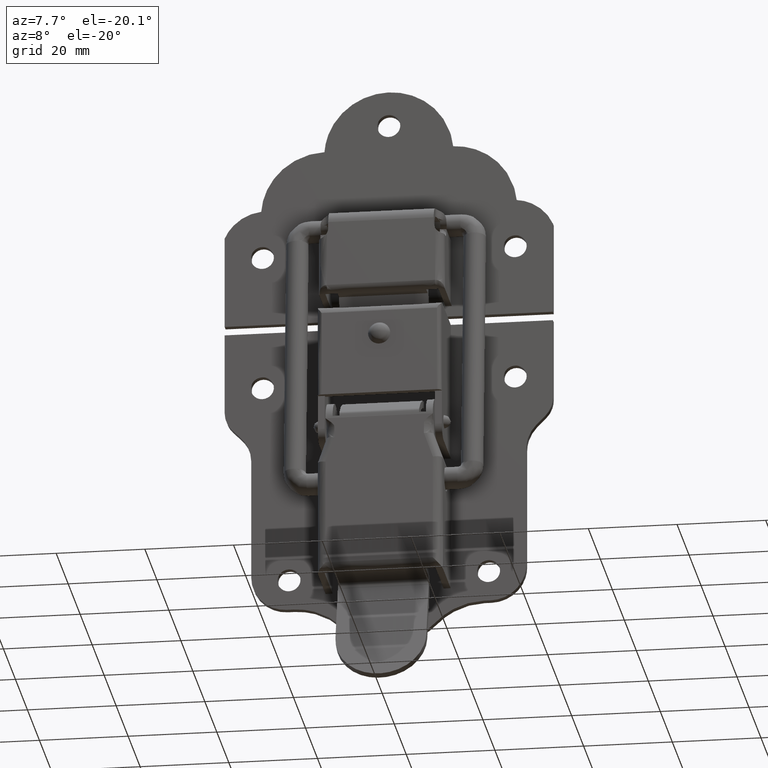
[diagram: clean part render]
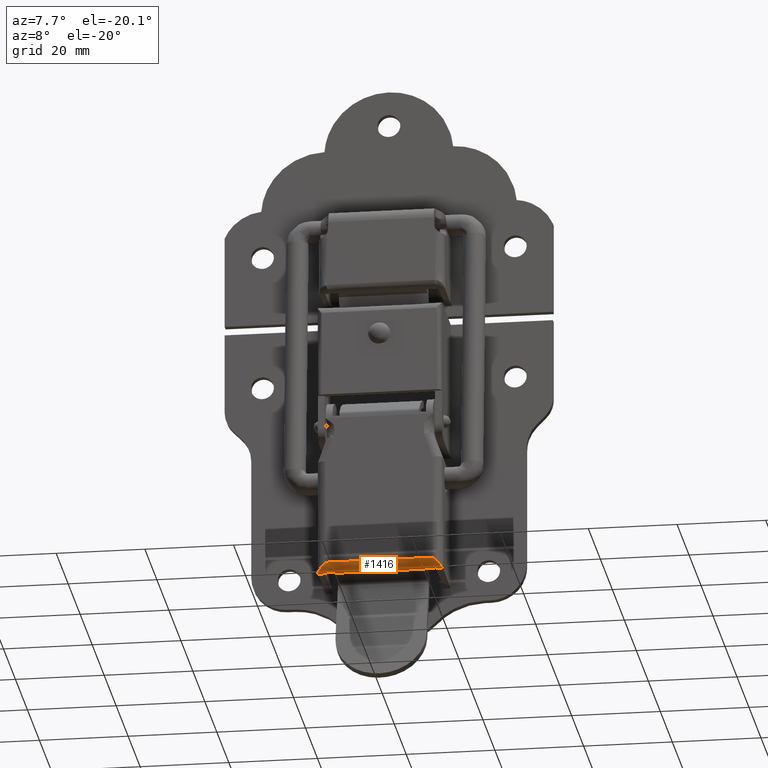
[diagram: same view with one face highlighted and labeled with its STEP entity id]
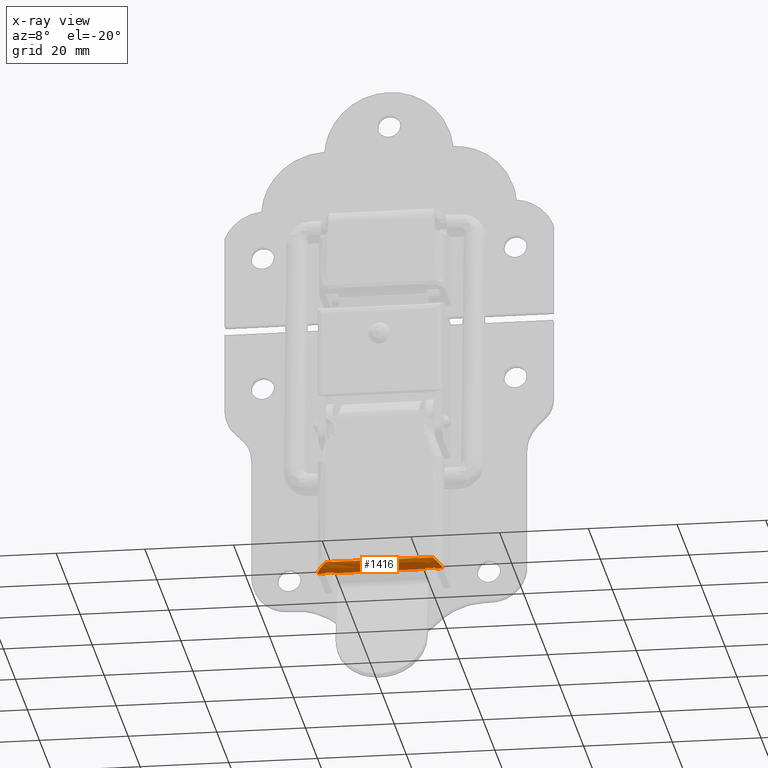
[diagram: x-ray of the same camera — body ghosted, the highlighted face saturated]
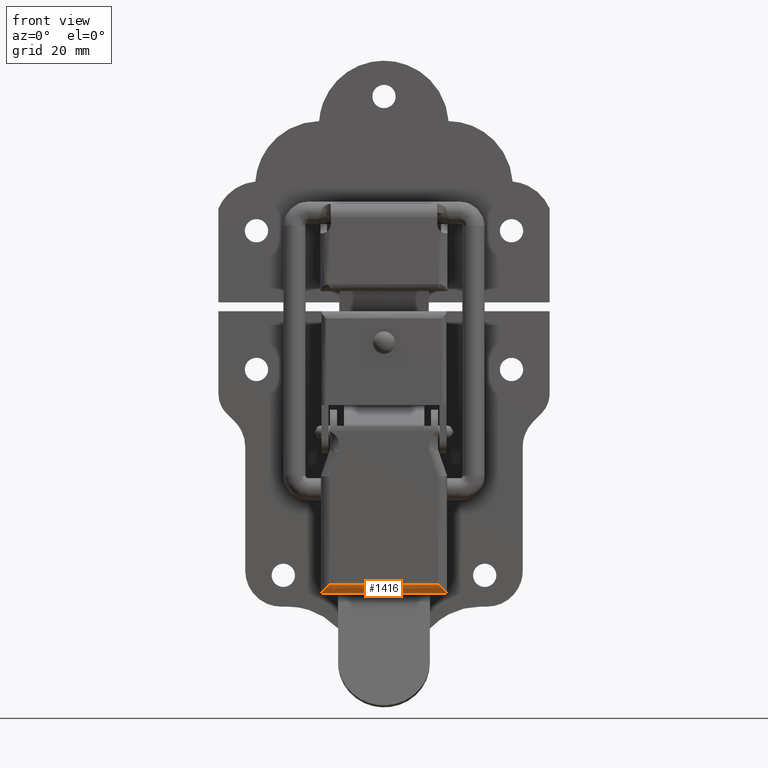
[diagram: same view with one face highlighted and labeled with its STEP entity id]
A machine part, auxiliary view. The second image highlights one B-rep face of the part: STEP entity #1416.
The next image is the same camera in x-ray: the body ghosted, the highlighted face saturated — about 0% of this face is hidden behind the body in this view.
A second angle (front view) of the same face is appended — the face is thin or edge-on in the first view.
In plain terms, the highlighted face is a freeform B-spline surface patch.
Its self-contained STEP definition (entity closure, byte-faithful):
#1266=CARTESIAN_POINT('',(14.804692500000000,-5.099314649951114,-33.947646103384251));
#1267=CARTESIAN_POINT('',(-14.822617312500000,-5.099314649951114,-33.947646103384251));
#1268=CARTESIAN_POINT('',(14.804692500000000,-5.156984525741295,-36.149969807661961));
#1269=CARTESIAN_POINT('',(-14.822617312499998,-5.156984525741295,-36.149969807661961));
#1270=CARTESIAN_POINT('',(14.804692500000009,-2.959359662507070,-35.995048945632639));
#1271=CARTESIAN_POINT('',(-14.822617312500002,-2.959359662507070,-35.995048945632639));
#1279=(BOUNDED_SURFACE()B_SPLINE_SURFACE(1,2,((#1266,#1268,#1270),(#1267,#1269,#1271)),.UNSPECIFIED.,.F.,.F.,.U.)B_SPLINE_SURFACE_WITH_KNOTS((2,2),(3,3),(0.0,29.627309812500009),(0.0,3.542284911563189),.UNSPECIFIED.)GEOMETRIC_REPRESENTATION_ITEM()RATIONAL_B_SPLINE_SURFACE(((1.0,0.670944202448334,0.996392689567979),(1.0,0.670944202448334,0.996392689567979)))REPRESENTATION_ITEM('')SURFACE());
#1280=CARTESIAN_POINT('',(12.099700000000000,-5.100000000000001,-34.0));
#1281=VERTEX_POINT('',#1280);
#1282=CARTESIAN_POINT('',(14.099700000000000,-3.100000000000000,-36.0));
#1283=VERTEX_POINT('',#1282);
#1284=CARTESIAN_POINT('',(12.099700000000000,-5.100000000000001,-34.0));
#1285=CARTESIAN_POINT('',(14.099699999999999,-5.100000000000001,-36.000000000000007));
#1286=CARTESIAN_POINT('',(14.099700000000000,-3.100000000000001,-36.000000000000007));
#1294=(BOUNDED_CURVE()B_SPLINE_CURVE(2,(#1284,#1285,#1286),.UNSPECIFIED.,.F.,.U.)CURVE()GEOMETRIC_REPRESENTATION_ITEM()QUASI_UNIFORM_CURVE()RATIONAL_B_SPLINE_CURVE((1.0,0.707106781186548,1.0))REPRESENTATION_ITEM(''));
#1295=EDGE_CURVE('',#1281,#1283,#1294,.T.);
#1296=ORIENTED_EDGE('',*,*,#1295,.F.);
#1297=CARTESIAN_POINT('',(-12.100000000000000,-5.100000000000001,-34.0));
#1298=VERTEX_POINT('',#1297);
#1299=CARTESIAN_POINT('',(-12.100000000000000,-5.100000000000001,-34.0));
#1300=CARTESIAN_POINT('',(12.099700000000000,-5.100000000000001,-34.0));
#1301=QUASI_UNIFORM_CURVE('',1,(#1299,#1300),.UNSPECIFIED.,.F.,.U.);
#1302=EDGE_CURVE('',#1298,#1281,#1301,.T.);
#1303=ORIENTED_EDGE('',*,*,#1302,.F.);
#1304=CARTESIAN_POINT('',(-14.100000000000000,-3.100000000000000,-36.0));
#1305=VERTEX_POINT('',#1304);
#1306=CARTESIAN_POINT('',(-14.100000000000000,-3.100000000000000,-36.0));
#1307=CARTESIAN_POINT('',(-14.100000039036814,-3.928427058106171,-36.000000039036820));
#1308=CARTESIAN_POINT('',(-13.514213595693100,-4.514213529053086,-35.414213595693113));
#1309=CARTESIAN_POINT('',(-12.928427152349384,-5.100000000000001,-34.828427152349384));
#1310=CARTESIAN_POINT('',(-12.100000000000000,-5.100000000000001,-34.0));
#1318=(BOUNDED_CURVE()B_SPLINE_CURVE(2,(#1306,#1307,#1308,#1309,#1310),.UNSPECIFIED.,.F.,.U.)B_SPLINE_CURVE_WITH_KNOTS((3,2,3),(0.0,0.500000000000000,1.0),.UNSPECIFIED.)CURVE()GEOMETRIC_REPRESENTATION_ITEM()RATIONAL_B_SPLINE_CURVE((1.0,0.923879528003122,1.0,0.923879528003122,1.0))REPRESENTATION_ITEM(''));
#1319=EDGE_CURVE('',#1305,#1298,#1318,.T.);
#1320=ORIENTED_EDGE('',*,*,#1319,.F.);
#1321=CARTESIAN_POINT('',(-12.500000000000000,-3.100000000000000,-36.0));
#1322=VERTEX_POINT('',#1321);
#1323=CARTESIAN_POINT('',(-12.500000000000000,-3.100000000000000,-36.0));
#1324=CARTESIAN_POINT('',(-14.100000000000000,-3.100000000000000,-36.0));
#1325=QUASI_UNIFORM_CURVE('',1,(#1323,#1324),.UNSPECIFIED.,.F.,.U.);
#1326=EDGE_CURVE('',#1322,#1305,#1325,.T.);
#1327=ORIENTED_EDGE('',*,*,#1326,.F.);
#1328=CARTESIAN_POINT('',(-12.500000000000000,-3.500000000000000,-35.959591794226647));
#1329=VERTEX_POINT('',#1328);
#1330=CARTESIAN_POINT('',(-12.500000000000000,-3.499999999999979,-35.959591794226547));
#1331=CARTESIAN_POINT('',(-12.500000000000002,-3.302041028867277,-36.000000000000007));
#1332=CARTESIAN_POINT('',(-12.500000000000000,-3.100000000000000,-36.000000000000007));
#1340=(BOUNDED_CURVE()B_SPLINE_CURVE(2,(#1330,#1331,#1332),.UNSPECIFIED.,.F.,.U.)CURVE()GEOMETRIC_REPRESENTATION_ITEM()QUASI_UNIFORM_CURVE()RATIONAL_B_SPLINE_CURVE((1.0,0.994936153005125,1.0))REPRESENTATION_ITEM(''));
#1341=EDGE_CURVE('',#1329,#1322,#1340,.T.);
#1342=ORIENTED_EDGE('',*,*,#1341,.F.);
#1343=CARTESIAN_POINT('',(-10.250299999999999,-3.500000000000000,-35.959591794226647));
#1344=VERTEX_POINT('',#1343);
#1345=CARTESIAN_POINT('',(-10.250299999999999,-3.500000000000000,-35.959591794226647));
#1346=CARTESIAN_POINT('',(-12.500000000000000,-3.500000000000000,-35.959591794226647));
#1347=QUASI_UNIFORM_CURVE('',1,(#1345,#1346),.UNSPECIFIED.,.F.,.U.);
#1348=EDGE_CURVE('',#1344,#1329,#1347,.T.);
#1349=ORIENTED_EDGE('',*,*,#1348,.F.);
#1350=CARTESIAN_POINT('',(-10.250299999999999,-3.100000000000000,-36.0));
#1351=VERTEX_POINT('',#1350);
#1352=CARTESIAN_POINT('',(-10.250299999999999,-3.100000000000000,-36.000000000000007));
#1353=CARTESIAN_POINT('',(-10.250300000000001,-3.302041028867276,-36.000000000000007));
#1354=CARTESIAN_POINT('',(-10.250299999999999,-3.499999999999979,-35.959591794226547));
#1362=(BOUNDED_CURVE()B_SPLINE_CURVE(2,(#1352,#1353,#1354),.UNSPECIFIED.,.F.,.U.)CURVE()GEOMETRIC_REPRESENTATION_ITEM()QUASI_UNIFORM_CURVE()RATIONAL_B_SPLINE_CURVE((1.0,0.994936153005125,1.0))REPRESENTATION_ITEM(''));
#1363=EDGE_CURVE('',#1351,#1344,#1362,.T.);
#1364=ORIENTED_EDGE('',*,*,#1363,.F.);
#1365=CARTESIAN_POINT('',(10.249700000000001,-3.100000000000000,-36.0));
#1366=VERTEX_POINT('',#1365);
#1367=CARTESIAN_POINT('',(10.249700000000001,-3.100000000000000,-36.0));
#1368=CARTESIAN_POINT('',(-10.250299999999999,-3.100000000000000,-36.0));
#1369=QUASI_UNIFORM_CURVE('',1,(#1367,#1368),.UNSPECIFIED.,.F.,.U.);
#1370=EDGE_CURVE('',#1366,#1351,#1369,.T.);
#1371=ORIENTED_EDGE('',*,*,#1370,.F.);
#1372=CARTESIAN_POINT('',(10.249700000000001,-3.500000000000000,-35.959591794226647));
#1373=VERTEX_POINT('',#1372);
#1374=CARTESIAN_POINT('',(10.249700000000001,-3.499999999999980,-35.959591794226547));
#1375=CARTESIAN_POINT('',(10.249700000000004,-3.302041028867277,-36.000000000000007));
#1376=CARTESIAN_POINT('',(10.249700000000001,-3.100000000000000,-36.000000000000007));
#1384=(BOUNDED_CURVE()B_SPLINE_CURVE(2,(#1374,#1375,#1376),.UNSPECIFIED.,.F.,.U.)CURVE()GEOMETRIC_REPRESENTATION_ITEM()QUASI_UNIFORM_CURVE()RATIONAL_B_SPLINE_CURVE((1.0,0.994936153005125,1.0))REPRESENTATION_ITEM(''));
#1385=EDGE_CURVE('',#1373,#1366,#1384,.T.);
#1386=ORIENTED_EDGE('',*,*,#1385,.F.);
#1387=CARTESIAN_POINT('',(12.499700000000001,-3.500000000000000,-35.959591794226647));
#1388=VERTEX_POINT('',#1387);
#1389=CARTESIAN_POINT('',(12.499700000000001,-3.500000000000000,-35.959591794226647));
#1390=CARTESIAN_POINT('',(10.249700000000001,-3.500000000000000,-35.959591794226647));
#1391=QUASI_UNIFORM_CURVE('',1,(#1389,#1390),.UNSPECIFIED.,.F.,.U.);
#1392=EDGE_CURVE('',#1388,#1373,#1391,.T.);
#1393=ORIENTED_EDGE('',*,*,#1392,.F.);
#1394=CARTESIAN_POINT('',(12.499700000000001,-3.100000000000000,-36.0));
#1395=VERTEX_POINT('',#1394);
#1396=CARTESIAN_POINT('',(12.499700000000001,-3.100000000000000,-36.000000000000007));
#1397=CARTESIAN_POINT('',(12.499700000000002,-3.302041028867278,-36.000000000000007));
#1398=CARTESIAN_POINT('',(12.499700000000001,-3.499999999999979,-35.959591794226547));
#1406=(BOUNDED_CURVE()B_SPLINE_CURVE(2,(#1396,#1397,#1398),.UNSPECIFIED.,.F.,.U.)CURVE()GEOMETRIC_REPRESENTATION_ITEM()QUASI_UNIFORM_CURVE()RATIONAL_B_SPLINE_CURVE((1.0,0.994936153005125,1.0))REPRESENTATION_ITEM(''));
#1407=EDGE_CURVE('',#1395,#1388,#1406,.T.);
#1408=ORIENTED_EDGE('',*,*,#1407,.F.);
#1409=CARTESIAN_POINT('',(14.099700000000000,-3.100000000000000,-36.0));
#1410=CARTESIAN_POINT('',(12.499700000000001,-3.100000000000000,-36.0));
#1411=QUASI_UNIFORM_CURVE('',1,(#1409,#1410),.UNSPECIFIED.,.F.,.U.);
#1412=EDGE_CURVE('',#1283,#1395,#1411,.T.);
#1413=ORIENTED_EDGE('',*,*,#1412,.F.);
#1414=EDGE_LOOP('',(#1296,#1303,#1320,#1327,#1342,#1349,#1364,#1371,#1386,#1393,#1408,#1413));
#1415=FACE_OUTER_BOUND('',#1414,.T.);
#1416=ADVANCED_FACE('',(#1415),#1279,.T.);